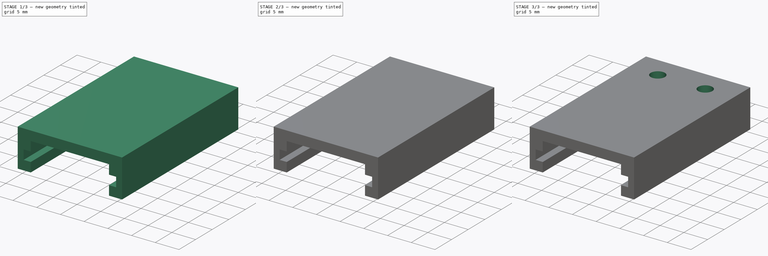
[diagram: build sequence overview — one tinted view per stage of 3, left to right]
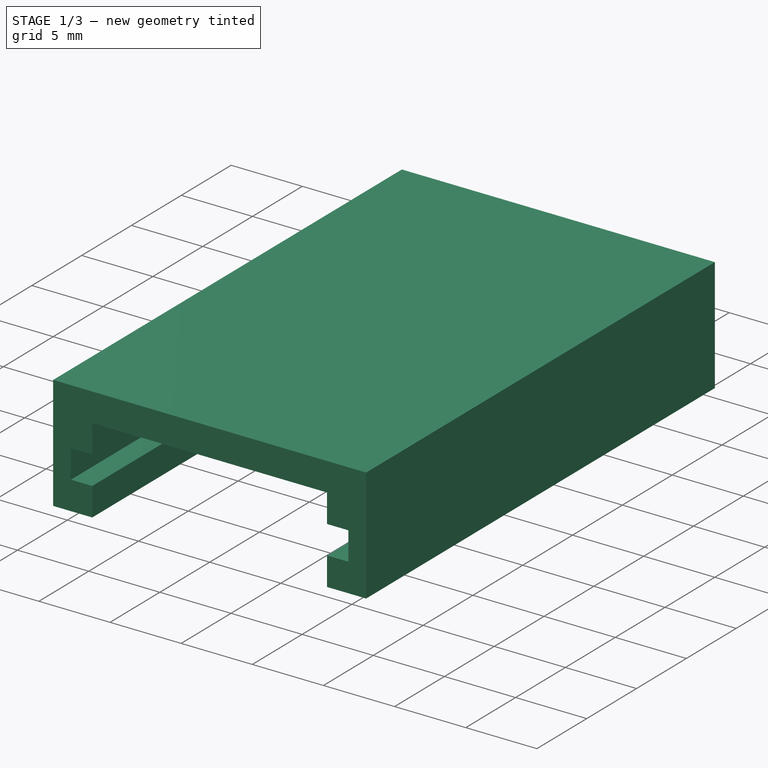
[diagram: stage 1 of 3 — iso view after this stage's code; geometry added in this stage tinted green]
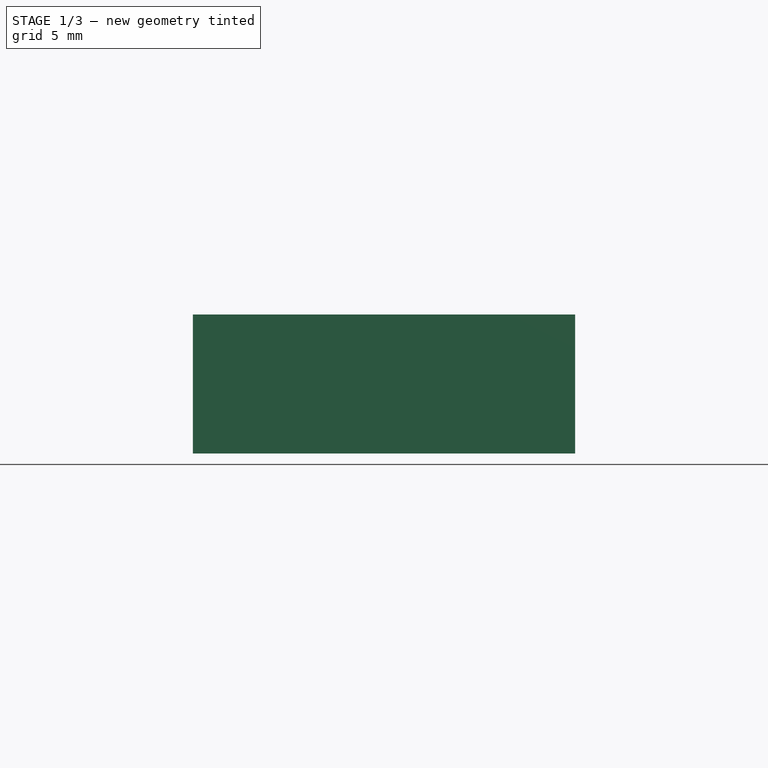
[diagram: stage 1 of 3 — front view after this stage's code; geometry added in this stage tinted green]
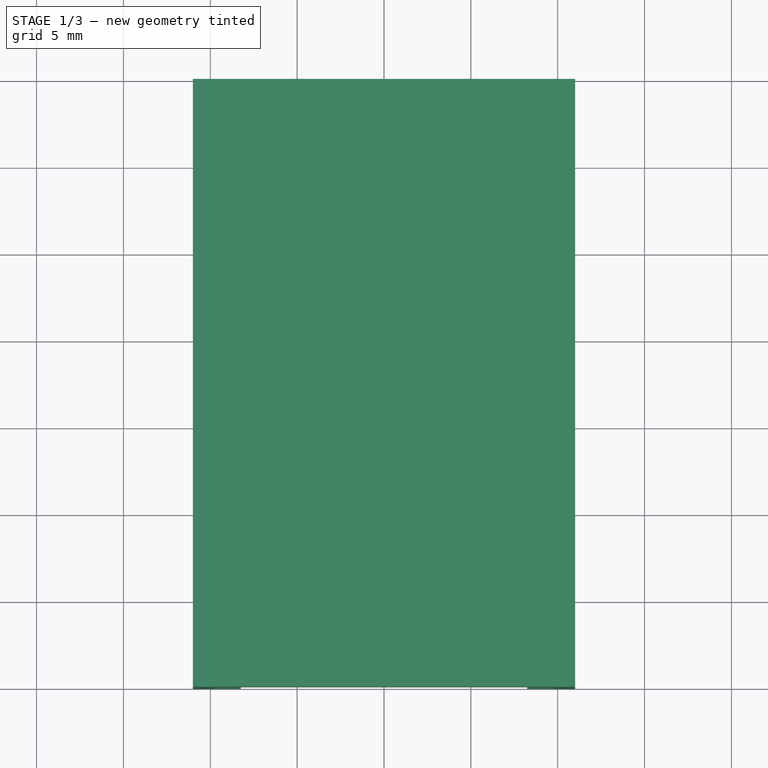
[diagram: stage 1 of 3 — top view after this stage's code; geometry added in this stage tinted green]
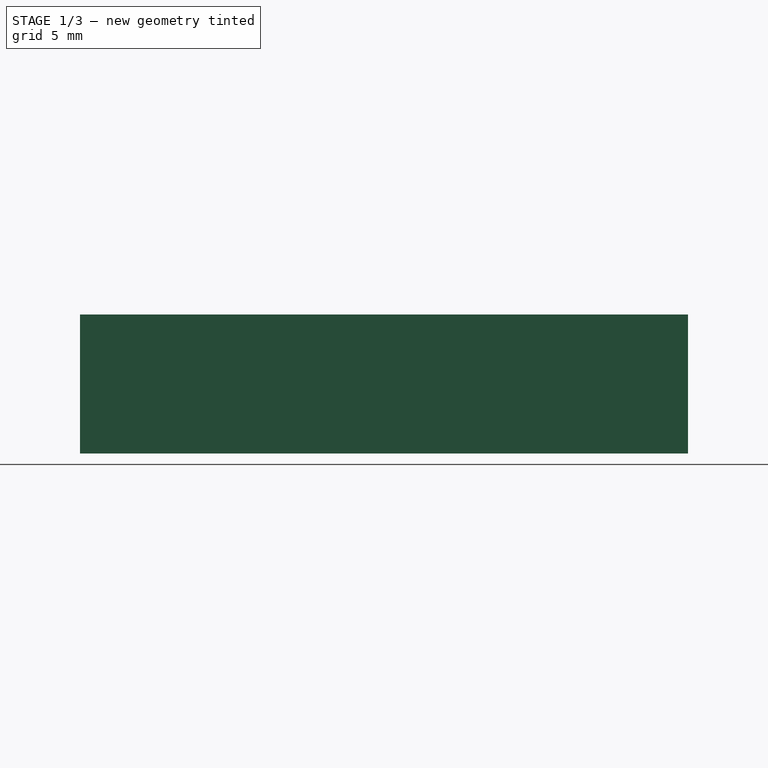
[diagram: stage 1 of 3 — right view after this stage's code; geometry added in this stage tinted green]
FCSTD DOCUMENT  (FreeCAD 0.18R4 (GitTag))
Label: TTL_Counterpiece
License: CreativeCommons Attribution-NonCommercial
LicenseURL: http://creativecommons.org/licenses/by-nc/4.0/
objects: Sketcher::SketchObject×6, PartDesign::Pad×3, PartDesign::Pocket×3, PartDesign::Body×1, App::Part×1
note: 19 computed .brp shape members not serialized (recipe doc carries the construction recipe); baked Part::Feature solids carry a one-line shape summary decoded from their .brp

FEATURE [Sketcher::SketchObject] Sketch
  MapMode = 5
  Placement = pos=(0,0,0) rot=(1,0,0;1.5708rad)
  Support = -> [XZ_Plane001]
  sketch-geometry (4):
    g0: LineSegment StartX=-11 StartY=-4 StartZ=0 EndX=11 EndY=-4 EndZ=0
    g1: LineSegment StartX=11 StartY=-4 StartZ=0 EndX=11 EndY=4 EndZ=0
    g2: LineSegment StartX=11 StartY=4 StartZ=0 EndX=-11 EndY=4 EndZ=0
    g3: LineSegment StartX=-11 StartY=4 StartZ=0 EndX=-11 EndY=-4 EndZ=0
  constraints (10):
    c: Coincident(g0,g1)
    c: Coincident(g1,g2)
    c: Coincident(g2,g3)
    c: Coincident(g3,g0)
    c: Horizontal(g0)
    c: Vertical(g3)
    c: Symmetric(g1,g0,g-1)
    c: Symmetric(g1,g2,g-2)
    c: DistanceX(g2,g2) = 22
    c: DistanceY(g1,g1) = 8
FEATURE [PartDesign::Pad] Pad  label="TTL Counterpiece Baseblock"
  Length = 35
  Length2 = 100
  Placement = pos=(0,0,0) rot=(1,0,0;1.5708rad)
  Profile = -> Sketch
  Type = 0
FEATURE [Sketcher::SketchObject] Sketch001
  MapMode = 5
  Placement = pos=(0,-35,2.33e-14) rot=(1,0,0;1.5708rad)
  Support = -> [Pad]
  sketch-geometry (12):
    g0: LineSegment StartX=-8.25 StartY=-4 StartZ=0 EndX=-8.25 EndY=-2 EndZ=0
    g1: LineSegment StartX=-8.25 StartY=-2 StartZ=0 EndX=-9.75 EndY=-2 EndZ=0
    g2: LineSegment StartX=-9.75 StartY=-2 StartZ=0 EndX=-9.75 EndY=0 EndZ=0
    g3: LineSegment StartX=-9.75 StartY=0 StartZ=0 EndX=-8.25 EndY=0 EndZ=0
    g4: LineSegment StartX=-8.25 StartY=0 StartZ=0 EndX=-8.25 EndY=2 EndZ=0
    g5: LineSegment StartX=-8.25 StartY=2 StartZ=0 EndX=8.25 EndY=2 EndZ=0
    g6: LineSegment StartX=8.25 StartY=2 StartZ=0 EndX=8.25 EndY=0 EndZ=0
    g7: LineSegment StartX=8.25 StartY=0 StartZ=0 EndX=9.75 EndY=0 EndZ=0
    g8: LineSegment StartX=9.75 StartY=0 StartZ=0 EndX=9.75 EndY=-2 EndZ=0
    g9: LineSegment StartX=9.75 StartY=-2 StartZ=0 EndX=8.25 EndY=-2 EndZ=0
    g10: LineSegment StartX=8.25 StartY=-2 StartZ=0 EndX=8.25 EndY=-4 EndZ=0
    g11: LineSegment StartX=8.25 StartY=-4 StartZ=0 EndX=-8.25 EndY=-4 EndZ=0
  constraints (37):
    c: Vertical(g0)
    c: Coincident(g0,g1)
    c: Horizontal(g1)
    c: Coincident(g1,g2)
    c: Vertical(g2)
    c: Coincident(g2,g3)
    c: Horizontal(g3)
    c: Coincident(g3,g4)
    c: Vertical(g4)
    c: Coincident(g4,g5)
    c: Coincident(g5,g6)
    c: Coincident(g6,g7)
    c: Horizontal(g7)
    c: Coincident(g7,g8)
    c: Vertical(g8)
    c: Coincident(g8,g9)
    c: Horizontal(g9)
    c: Coincident(g9,g10)
    c: Coincident(g10,g11)
    c: Coincident(g11,g0)
    c: Horizontal(g11)
    c: Equal(g4,g2)
    c: Equal(g2,g0)
    c: DistanceY(g2,g2) = 2
    c: Equal(g3,g1)
    c: Equal(g1,g7)
    c: Equal(g7,g9)
    c: Vertical(g10)
    c: DistanceX(g3,g3) = 1.5
    c: DistanceX(g2,g7) = 19.5
    c: Symmetric(g4,g5,g-2)
    c: Symmetric(g3,g6,g-1)
    c: Equal(g4,g2)
    c: Equal(g2,g0)
    c: Equal(g0,g10)
    c: Equal(g10,g8)
    c: Equal(g8,g6)
FEATURE [PartDesign::Pocket] Pocket  label="TTL Slide-In"
  BaseFeature = -> Pad
  Length = 25
  Length2 = 100
  Placement = pos=(0,0,0) rot=(1,0,0;1.5708rad)
  Profile = -> Sketch001
  Type = 0
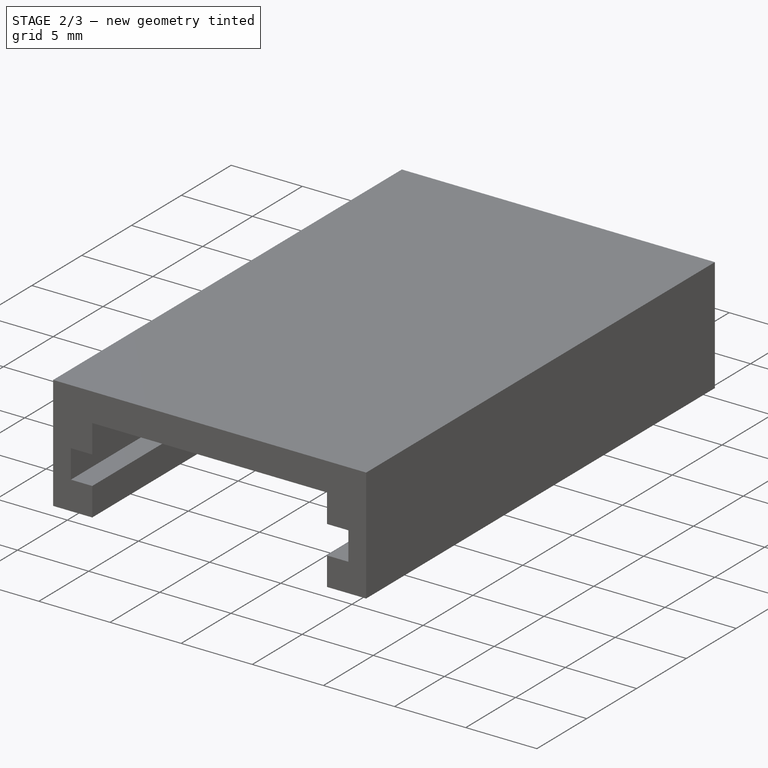
[diagram: stage 2 of 3 — iso view after this stage's code; geometry added in this stage tinted green]
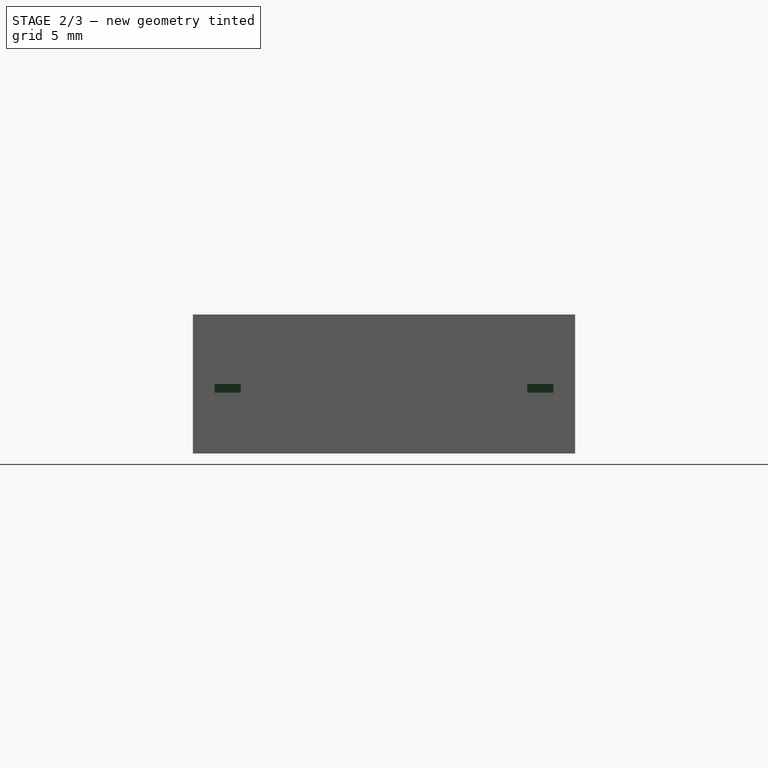
[diagram: stage 2 of 3 — front view after this stage's code; geometry added in this stage tinted green]
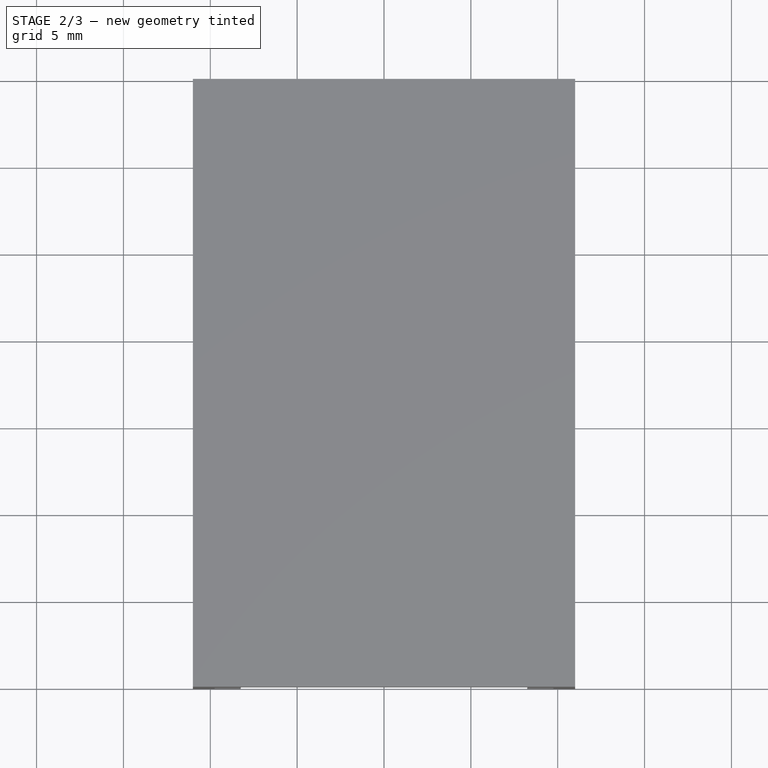
[diagram: stage 2 of 3 — top view after this stage's code; geometry added in this stage tinted green]
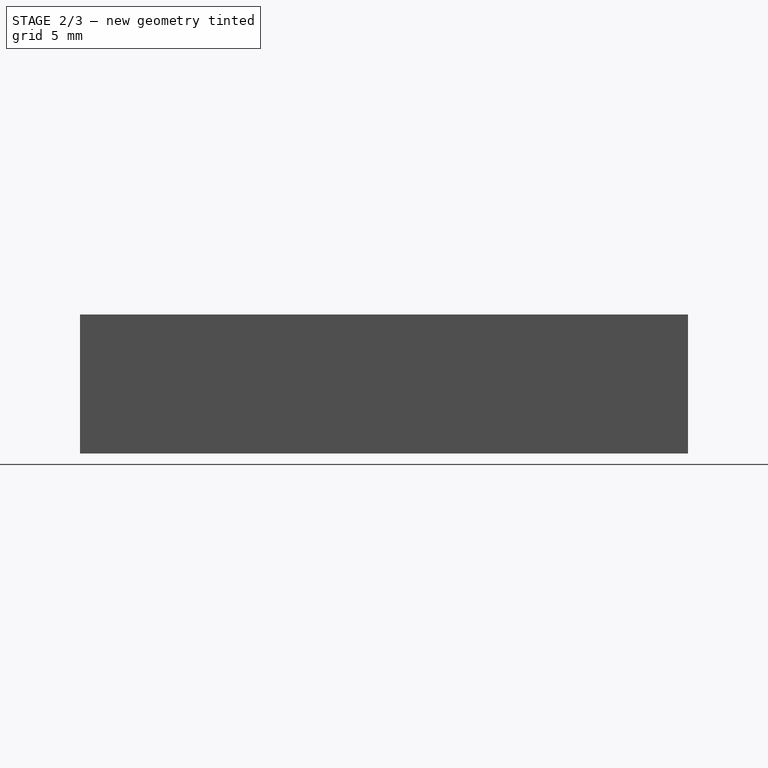
[diagram: stage 2 of 3 — right view after this stage's code; geometry added in this stage tinted green]
FEATURE [Sketcher::SketchObject] Sketch003
  MapMode = 5
  Placement = pos=(-9.75,0,0) rot=(0.707107,0,0.707107;3.14159rad)
  Support = -> [Pocket]
  sketch-geometry (3):
    g0: LineSegment StartX=0 StartY=10 StartZ=0 EndX=-0.5 EndY=10 EndZ=0
    g1: LineSegment StartX=-0.5 StartY=10 StartZ=0 EndX=0 EndY=30 EndZ=0
    g2: LineSegment StartX=0 StartY=30 StartZ=0 EndX=0 EndY=10 EndZ=0
  constraints (9):
    c: PointOnObject(g0,g-2)
    c: Coincident(g0,g1)
    c: PointOnObject(g1,g-2)
    c: Coincident(g1,g2)
    c: Coincident(g2,g0)
    c: DistanceX(g0,g0) = 0.5
    c: DistanceY(g2,g2) = 20
    c: Horizontal(g0)
    c: DistanceY(g-1,g0) = 10
FEATURE [PartDesign::Pad] Pad001  label="TTL left Squeezer"
  BaseFeature = -> Pocket
  Length = 1.5
  Length2 = 100
  Placement = pos=(0,0,0) rot=(1,0,0;1.5708rad)
  Profile = -> Sketch003
  Type = 0
FEATURE [Sketcher::SketchObject] Sketch004
  MapMode = 5
  Placement = pos=(9.75,0,0) rot=(0.707107,0,-0.707107;3.14159rad)
  Support = -> [Pad001]
  sketch-geometry (3):
    g0: LineSegment StartX=0 StartY=10 StartZ=0 EndX=0.5 EndY=10 EndZ=0
    g1: LineSegment StartX=0.5 StartY=10 StartZ=0 EndX=0 EndY=30 EndZ=0
    g2: LineSegment StartX=0 StartY=30 StartZ=0 EndX=0 EndY=10 EndZ=0
  constraints (9):
    c: PointOnObject(g0,g-2)
    c: Horizontal(g0)
    c: Coincident(g0,g1)
    c: PointOnObject(g1,g-2)
    c: Coincident(g1,g2)
    c: Coincident(g2,g0)
    c: DistanceX(g0,g0) = 0.5
    c: DistanceY(g-1,g0) = 10
    c: DistanceY(g2,g2) = 20
FEATURE [PartDesign::Pad] Pad002  label="TTL right Squeezer"
  BaseFeature = -> Pad001
  Length = 1.5
  Length2 = 100
  Placement = pos=(0,0,0) rot=(1,0,0;1.5708rad)
  Profile = -> Sketch004
  Type = 0
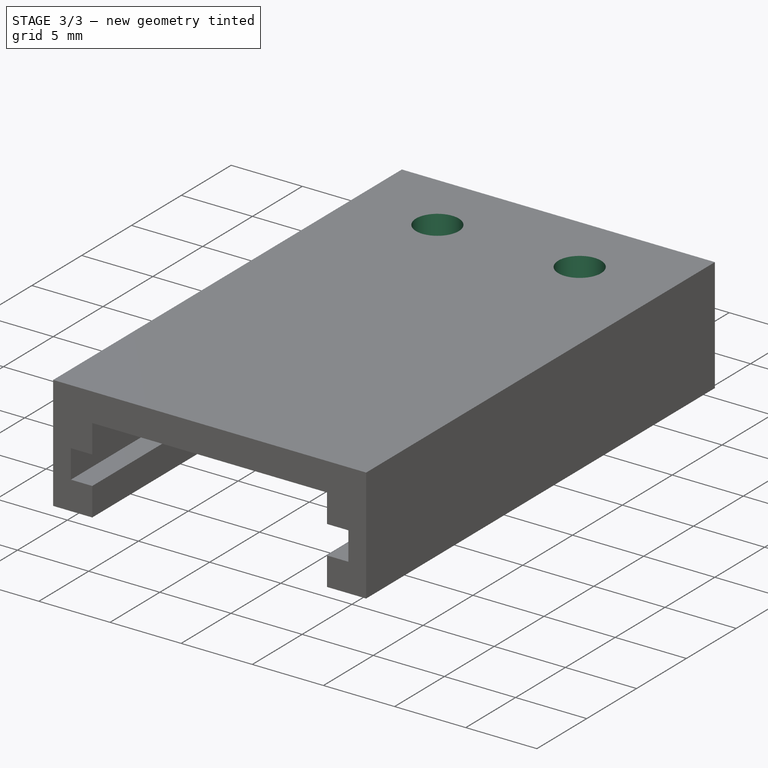
[diagram: stage 3 of 3 — iso view after this stage's code; geometry added in this stage tinted green]
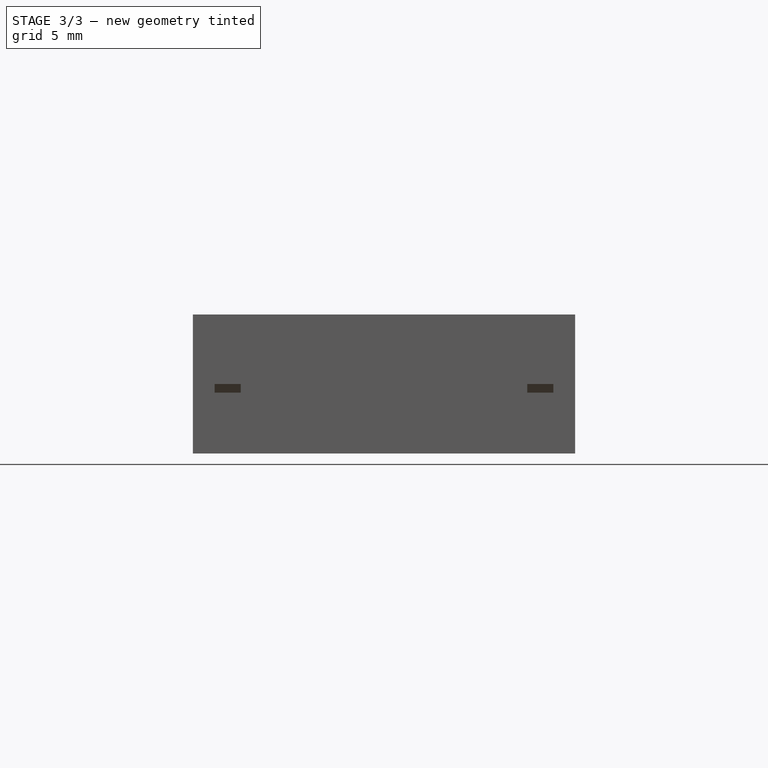
[diagram: stage 3 of 3 — front view after this stage's code; geometry added in this stage tinted green]
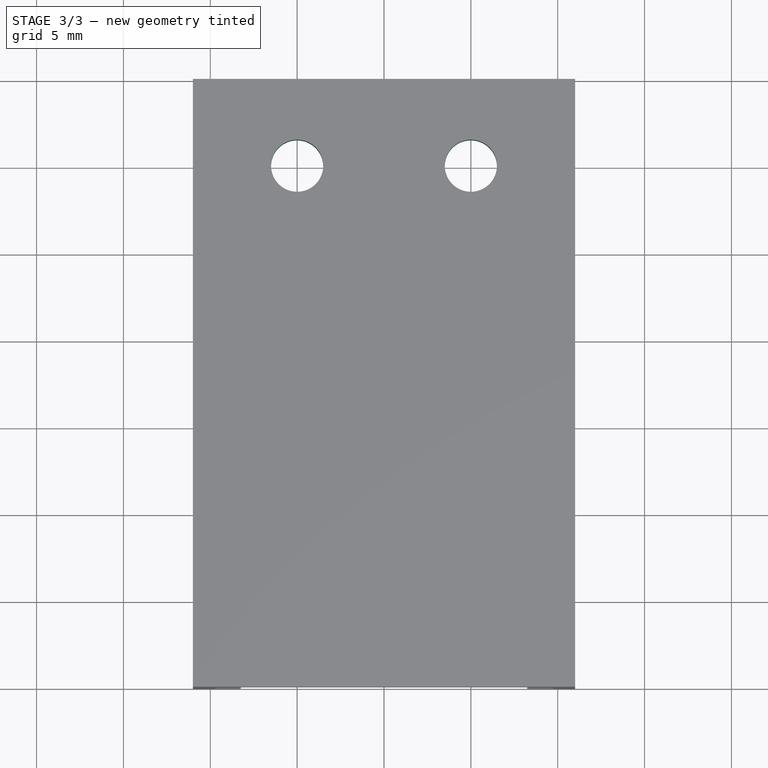
[diagram: stage 3 of 3 — top view after this stage's code; geometry added in this stage tinted green]
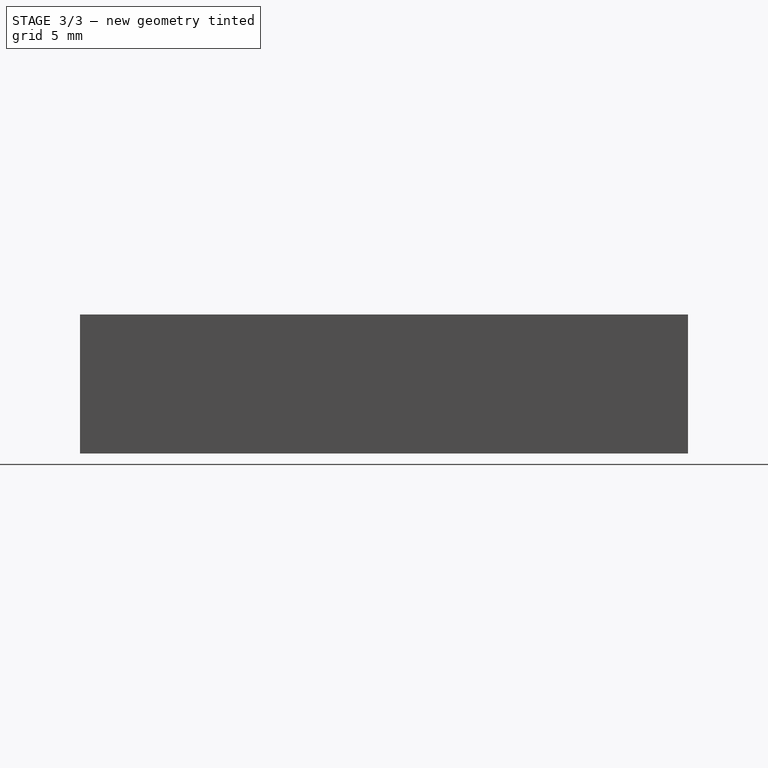
[diagram: stage 3 of 3 — right view after this stage's code; geometry added in this stage tinted green]
FEATURE [Sketcher::SketchObject] Sketch005
  MapMode = 5
  Placement = pos=(0,-8e-15,-4) rot=(1,0,0;3.14159rad)
  Support = -> [Pad002]
  sketch-geometry (2):
    g0: Circle CenterX=-5 CenterY=5 CenterZ=0 NormalX=0 NormalY=0 NormalZ=1 AngleXU=0 Radius=3
    g1: Circle CenterX=5 CenterY=5 CenterZ=0 NormalX=0 NormalY=0 NormalZ=1 AngleXU=0 Radius=3
  constraints (5):
    c: Equal(g0,g1)
    c: Radius(g1) = 3
    c: Symmetric(g0,g1,g-2)
    c: DistanceX(g0,g1) = 10
    c: DistanceY(g-1,g1) = 5
FEATURE [PartDesign::Pocket] Pocket001  label="M3 Headhole"
  BaseFeature = -> Pad002
  Length = 5
  Length2 = 100
  Placement = pos=(0,0,0) rot=(1,0,0;1.5708rad)
  Profile = -> Sketch005
  Type = 0
FEATURE [Sketcher::SketchObject] Sketch006
  ExternalGeometry = -> [Pocket001]
  MapMode = 5
  Placement = pos=(0,2.4e-15,1) rot=(1,0,0;3.14159rad)
  Support = -> [Pocket001]
  sketch-geometry (2):
    g0: Circle CenterX=-5 CenterY=5 CenterZ=0 NormalX=0 NormalY=0 NormalZ=1 AngleXU=0 Radius=1.5
    g1: Circle CenterX=5 CenterY=5 CenterZ=0 NormalX=0 NormalY=0 NormalZ=1 AngleXU=0 Radius=1.5
  constraints (4):
    c: Coincident(g0,g-3)
    c: Coincident(g1,g-4)
    c: Radius(g0) = 1.5
    c: Equal(g0,g1)
FEATURE [PartDesign::Pocket] Pocket002  label="M2 Throughhole"
  BaseFeature = -> Pocket001
  Length = 5
  Length2 = 100
  Placement = pos=(0,0,0) rot=(1,0,0;1.5708rad)
  Profile = -> Sketch006
  Type = 0
FEATURE [PartDesign::Body] Body  label="TTL Counterpiece Body"
  Group = -> [Sketch,Pad,Sketch001,Pocket,Sketch003,Pad001,Sketch004,Pad002,Sketch005,Pocket001,Sketch006,Pocket002]
  Origin = -> Origin001
  Tip = -> Pocket002
FEATURE [App::Part] Part  label="TTL Counterpiece"
  Group = -> [Body]
  Origin = -> Origin
  Placement = pos=(0,0,0) rot=(1,0,0;4.71239rad)
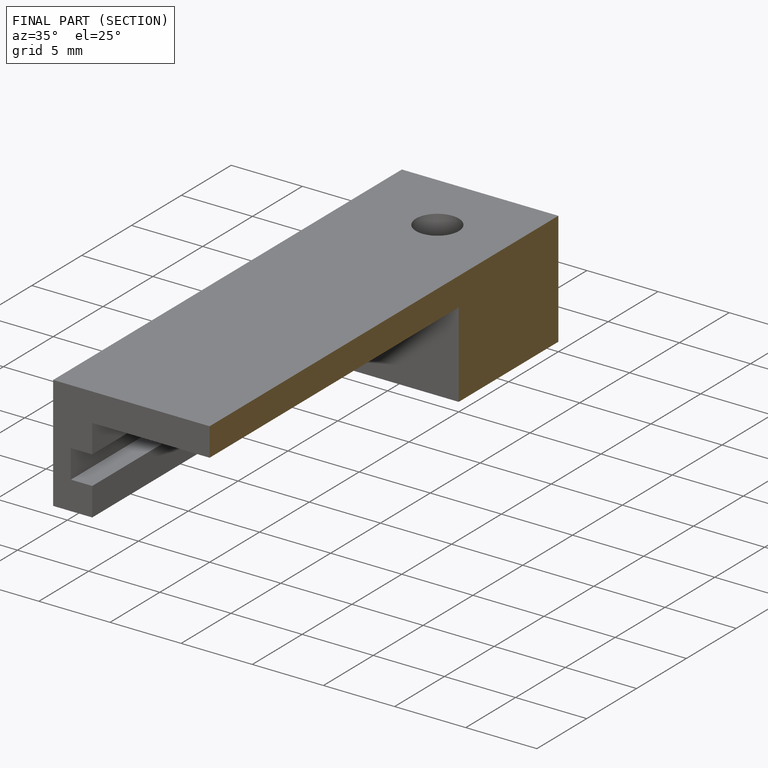
[diagram: finished part — half-section view (interior)]
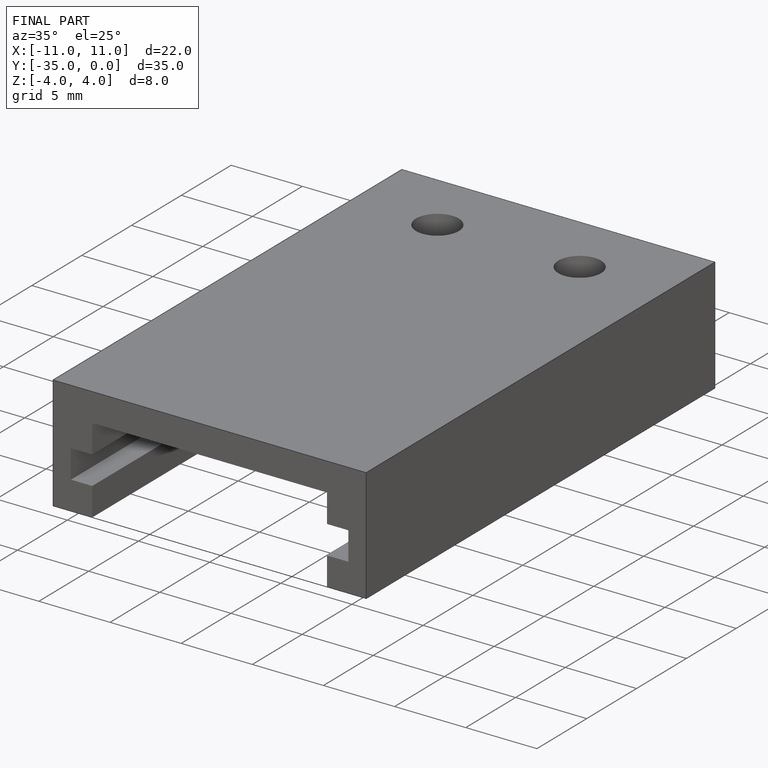
[diagram: finished part — iso view with bounding-box wireframe]
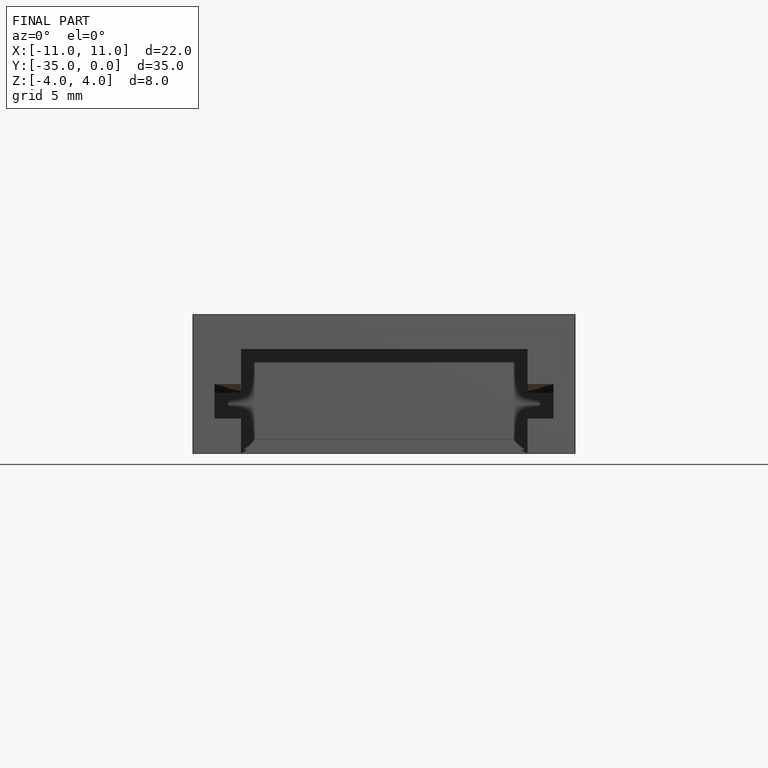
[diagram: finished part — front view with bounding-box wireframe]
